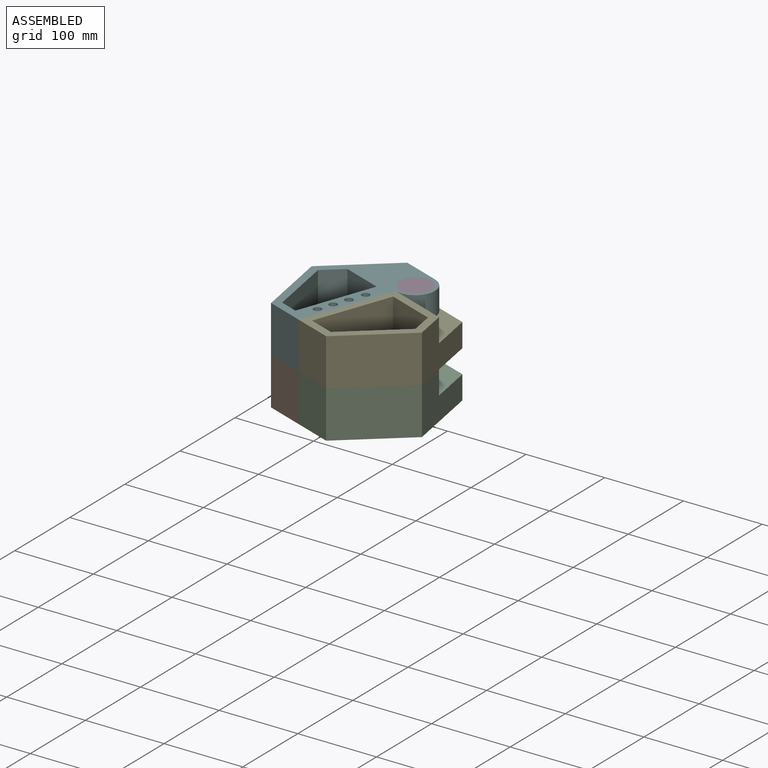
[diagram: assembled view]
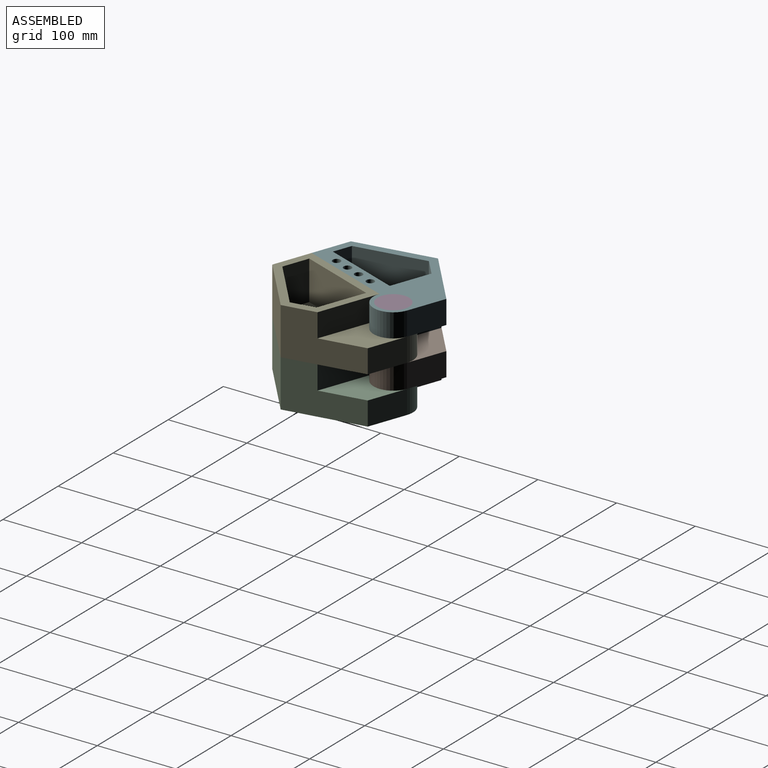
[diagram: assembled view, second angle]
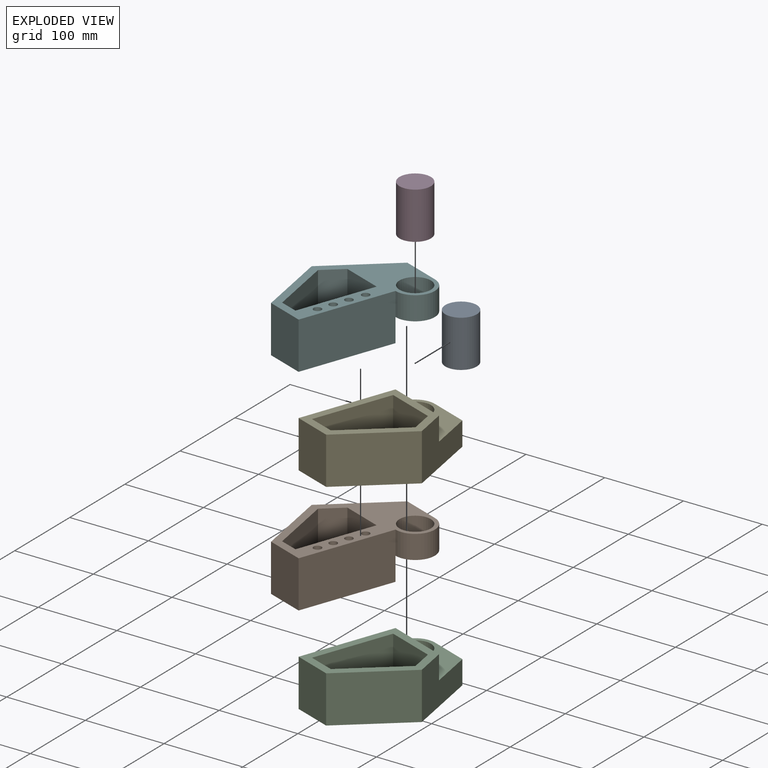
[diagram: exploded view]
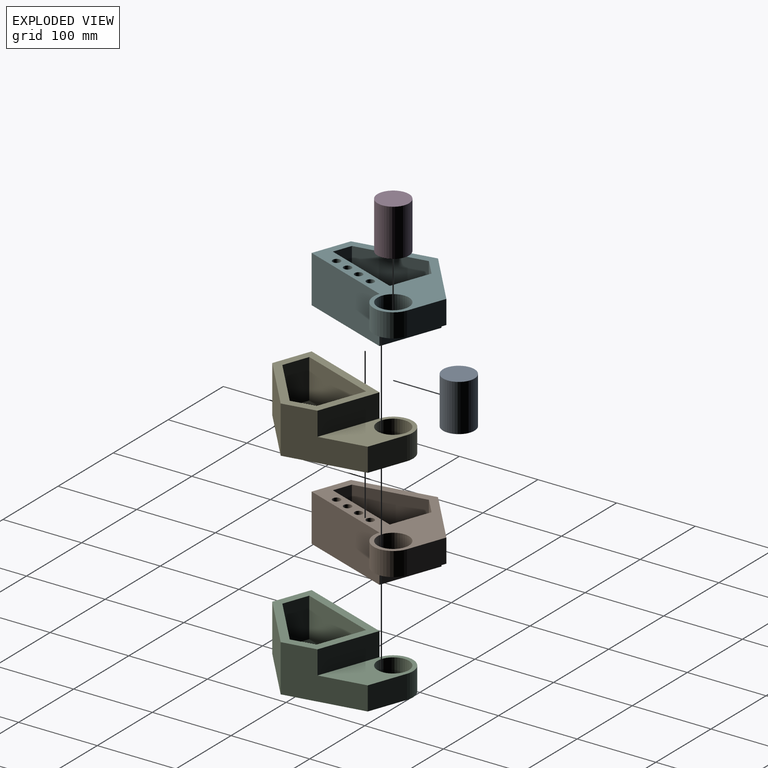
[diagram: exploded view, second angle]
ASSEMBLY  parts=6 mates=5
PART A: 3 faces, bbox 40x40x60 mm
  f0: cylinder r=20mm len=60mm, axis (0,0,-1), area 7539.8mm2, adj f1,f2
  f1: plane 40x40mm, normal (0,0,1), area 1256.6mm2, adj f0
  f2: plane 40x40mm, normal (0,0,-1), area 1256.6mm2, adj f0
PART B: 25 faces, bbox 125x173.2x60 mm
  f0: plane 123.21x100mm, normal (0,0,-1), area 9768.7mm2, adj f2,f3,f4,f13,f23
  f1: plane 76.6x50mm, normal (-0.87,-0.5,0), area 4422.6mm2, adj f5,f8,f14,f19
  f2: plane 60x50mm, normal (0,1,0), area 3000mm2, adj f0,f3,f13,f14
  f3: plane 123.21x60mm, normal (-1,0,0), area 7392.3mm2, adj f0,f2,f14,f22,f23
  f4: plane 86.6x60mm, normal (0.87,-0.5,0), area 4267.9mm2, adj f0,f13,f14,f20,f23,f24
  f5: plane 50x26.6mm, normal (-0.87,0.5,0), area 1535.9mm2, adj f1,f6,f14,f19
  f6: plane 53.09x50mm, normal (0,1,0), area 2654.7mm2, adj f5,f7,f14,f19
  f7: plane 103.21x50mm, normal (1,0,0), area 5160.3mm2, adj f6,f8,f14,f19
  f8: plane 50x24.23mm, normal (0,-1,0), area 1211.3mm2, adj f1,f7,f14,f19
  f9: cylinder r=5mm len=50mm, axis (0,0,-1), area 1570.8mm2, adj f14,f18
  f10: cylinder r=5mm len=50mm, axis (0,0,-1), area 1570.8mm2, adj f14,f17
  f11: cylinder r=5mm len=50mm, axis (0,0,-1), area 1570.8mm2, adj f14,f16
  f12: cylinder r=5mm len=50mm, axis (0,0,-1), area 1570.8mm2, adj f14,f15
  f13: plane 86.6x60mm, normal (0.87,0.5,0), area 6000mm2, adj f0,f2,f4,f14
  f14: plane 173.21x125mm, normal (0,0,1), area 7234.9mm2, adj f1,f2,f3,f4,f5,f6,f7,f8
  f15: plane 10x10mm, normal (0,0,1), area 78.5mm2, adj f12
  f16: plane 10x10mm, normal (0,0,1), area 78.5mm2, adj f11
  f17: plane 10x10mm, normal (0,0,1), area 78.5mm2, adj f10
  f18: plane 10x10mm, normal (0,0,1), area 78.5mm2, adj f9
  f19: plane 103.21x68.45mm, normal (0,0,1), area 5166.5mm2, adj f1,f5,f6,f7,f8
  f20: plane 50x30mm, normal (0,-1,0), area 1500mm2, adj f4,f14,f22,f24
  f21: cylinder r=20mm len=40mm, axis (0,0,-1), area 3769.9mm2, adj f14,f24
  f22: cylinder r=25mm len=50mm, axis (0,0,-1), area 2356.2mm2, adj f3,f14,f20,f24
  f23: plane 78.87x30mm, normal (0,-1,0), area 2366mm2, adj f0,f3,f4,f24
  f24: plane 103.87x50mm, normal (0,0,-1), area 2946.8mm2, adj f4,f20,f21,f22,f23
PART C: 17 faces, bbox 125x173.2x60 mm
  f0: plane 50x30mm, normal (0,-1,0), area 1500mm2, adj f1,f2,f13,f16
  f1: plane 86.6x60mm, normal (-0.87,-0.5,0), area 4267.9mm2, adj f0,f10,f12,f13,f15,f16
  f2: cylinder r=25mm len=50mm, axis (0,0,-1), area 2356.2mm2, adj f0,f8,f13,f16
  f3: cylinder r=20mm len=40mm, axis (0,0,-1), area 3769.9mm2, adj f13,f16
  f4: plane 76.6x50mm, normal (0.87,-0.5,0), area 4422.6mm2, adj f7,f11,f12,f14
  f5: plane 103.21x50mm, normal (-1,0,0), area 5160.3mm2, adj f6,f7,f12,f14
  f6: plane 63.09x50mm, normal (0,1,0), area 3154.7mm2, adj f5,f11,f12,f14
  f7: plane 50x34.23mm, normal (0,-1,0), area 1711.3mm2, adj f4,f5,f12,f14
  f8: plane 123.21x60mm, normal (1,0,0), area 7392.3mm2, adj f2,f9,f12,f13,f15
  f9: plane 60x50mm, normal (0,1,0), area 3000mm2, adj f8,f10,f12,f13
  f10: plane 86.6x60mm, normal (-0.87,0.5,0), area 6000mm2, adj f1,f9,f12,f13
  f11: plane 50x26.6mm, normal (0.87,0.5,0), area 1535.9mm2, adj f4,f6,f12,f14
  f12: plane 123.21x100mm, normal (0,0,1), area 3570.2mm2, adj f1,f4,f5,f6,f7,f8,f9,f10
  f13: plane 173.21x125mm, normal (0,0,-1), area 12715.5mm2, adj f0,f1,f2,f3,f8,f9,f10
  f14: plane 103.21x78.45mm, normal (0,0,1), area 6198.5mm2, adj f4,f5,f6,f7,f11
  f15: plane 78.87x30mm, normal (0,-1,0), area 2366mm2, adj f1,f8,f12,f16
  f16: plane 103.87x50mm, normal (0,0,1), area 2946.8mm2, adj f0,f1,f2,f3,f15
PART D: same geometry as A
PART E: same geometry as C
PART F: same geometry as B
PLACE A rot(axis=(0,0,1),160deg) t=(622.03,381.69,-49.64)mm
PLACE B rot(axis=(0,0,1),160deg) t=(629.15,347.53,-49.64)mm
PLACE C rot(axis=(0,0,1),160deg) t=(622.03,381.69,-49.64)mm
PLACE D rot(axis=(0,0,-1),20deg) t=(622.03,381.69,10.36)mm
PLACE E rot(axis=(0,0,1),160deg) t=(622.03,381.69,10.36)mm
PLACE F rot(axis=(0,0,1),160deg) t=(629.15,347.53,10.36)mm
MATE fastened A.f0 <-> B.f21  axis (0,0,1) through (622.03,381.69,10.36)mm
MATE fastened D.f0 <-> F.f21  axis (0,0,1) through (622.03,381.69,70.36)mm
MATE revolute C.f3 <-> B.f21  axis (0,0,1) through (622.03,381.69,-19.64)mm
MATE revolute D.f0 <-> A.f0  axis (0,0,-1) through (622.03,381.69,10.36)mm
MATE revolute E.f3 <-> F.f21  axis (0,0,-1) through (622.03,381.69,40.36)mm
